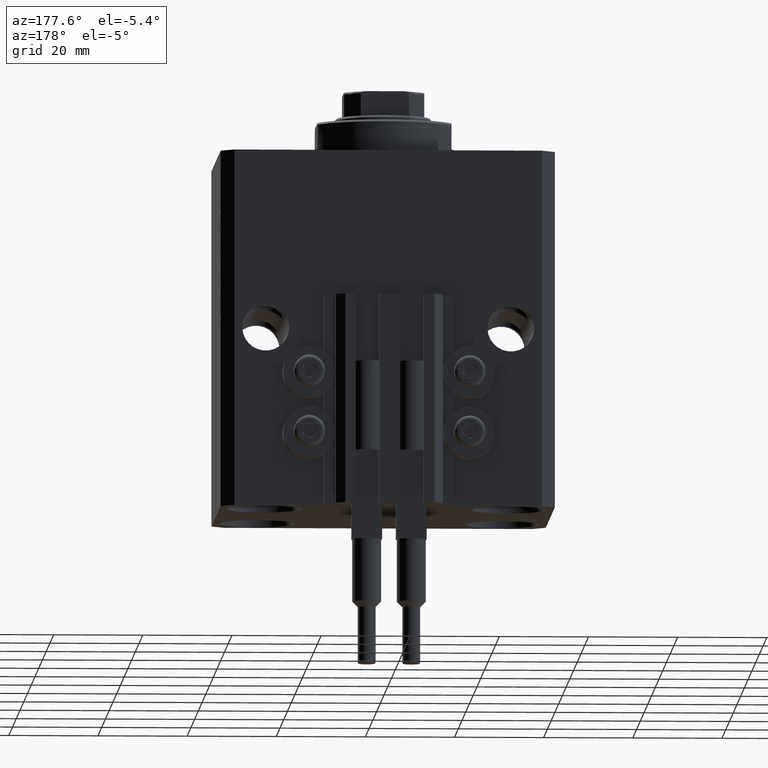
[diagram: clean part render]
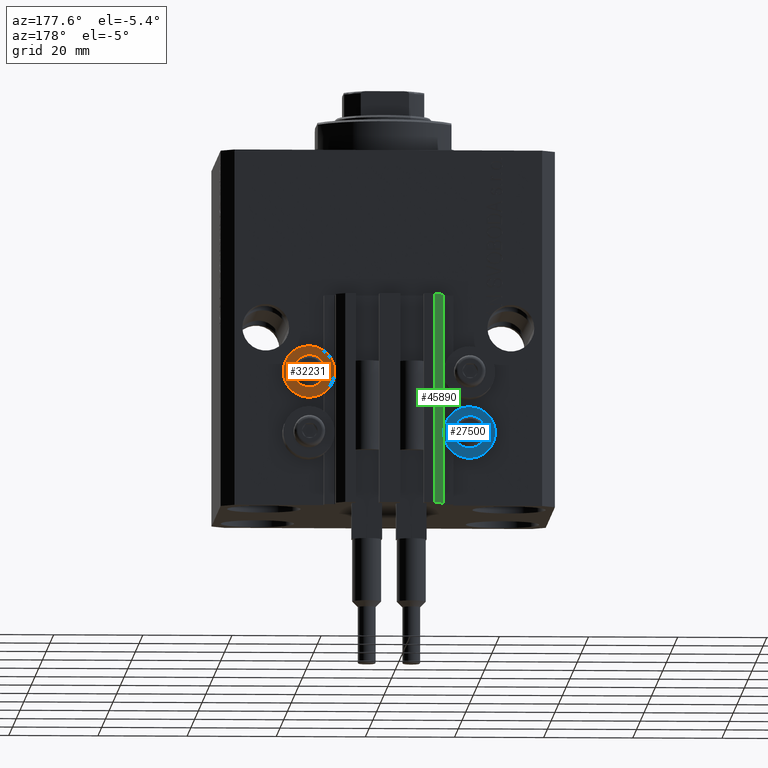
[diagram: same view with three faces highlighted in distinct colors, each labeled with its STEP entity id]
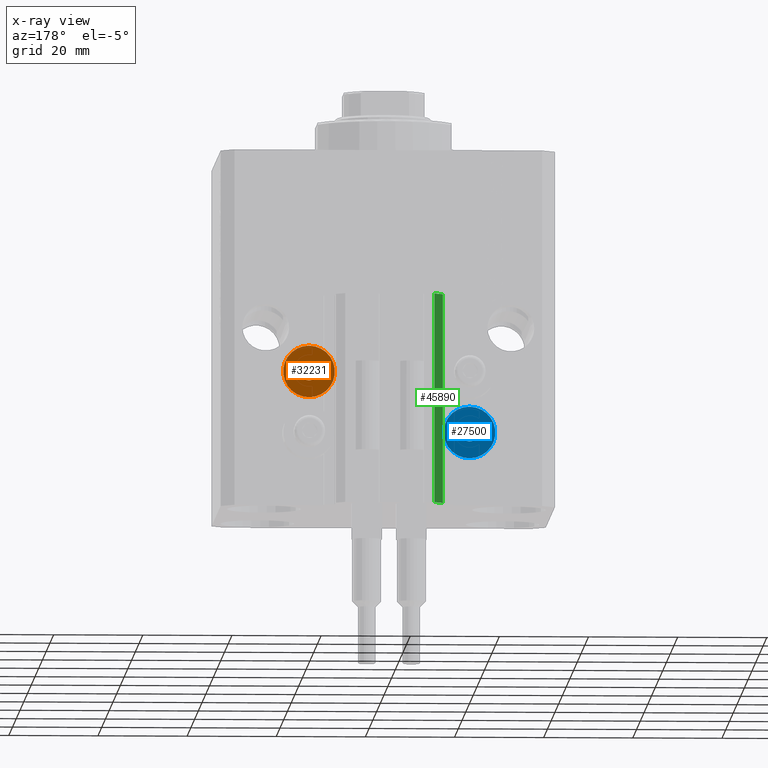
[diagram: x-ray of the same camera — body ghosted, the three highlighted faces saturated]
A machine part, auxiliary view with three faces highlighted in distinct colors.
The next image is the same camera in x-ray (body ghosted, the three faces saturated) — at least one of them is partly hidden behind the body in this view.
Their STEP definitions:

[orange] entity #32231 — the highlighted planar face has unit normal (0, -1, 0).
#305 = CARTESIAN_POINT ( 'NONE',  ( 18.00000000000000355, 32.49999999996100541, -50.39999999999999858 ) ) ;
#3443 = DIRECTION ( 'NONE',  ( 0.000000000000000000, 0.000000000000000000, 1.000000000000000000 ) ) ;
#5960 = ORIENTED_EDGE ( 'NONE', *, *, #25984, .F. ) ;
#6163 = CARTESIAN_POINT ( 'NONE',  ( 18.00000000000000355, 32.49999999996100541, -50.39999999999999858 ) ) ;
#7315 = DIRECTION ( 'NONE',  ( -0.000000000000000000, -1.000000000000000000, -0.000000000000000000 ) ) ;
#7389 = DIRECTION ( 'NONE',  ( -0.000000000000000000, -1.000000000000000000, -0.000000000000000000 ) ) ;
#15101 = AXIS2_PLACEMENT_3D ( 'NONE', #26618, #26383, #22517 ) ;
#15522 = FACE_BOUND ( 'NONE', #30416, .T. ) ;
#17171 = EDGE_CURVE ( 'NONE', #21870, #30648, #29369, .T. ) ;
#17576 = EDGE_CURVE ( 'NONE', #32317, #36187, #40908, .T. ) ;
#19970 = CARTESIAN_POINT ( 'NONE',  ( 18.00000000000000355, 32.49999999996100541, -56.20000000000000284 ) ) ;
#20685 = ORIENTED_EDGE ( 'NONE', *, *, #17576, .F. ) ;
#20740 = EDGE_LOOP ( 'NONE', ( #20685, #5960 ) ) ;
#21870 = VERTEX_POINT ( 'NONE', #34211 ) ;
#21985 = DIRECTION ( 'NONE',  ( 0.000000000000000000, 0.000000000000000000, 1.000000000000000000 ) ) ;
#22517 = DIRECTION ( 'NONE',  ( -0.000000000000000000, 0.000000000000000000, -1.000000000000000000 ) ) ;
#23387 = CARTESIAN_POINT ( 'NONE',  ( 18.00000000000000355, 32.49999999996100541, -48.39999999999999858 ) ) ;
#24573 = AXIS2_PLACEMENT_3D ( 'NONE', #40413, #7389, #43547 ) ;
#25670 = FACE_OUTER_BOUND ( 'NONE', #20740, .T. ) ;
#25984 = EDGE_CURVE ( 'NONE', #36187, #32317, #26438, .T. ) ;
#26383 = DIRECTION ( 'NONE',  ( 0.000000000000000000, -1.000000000000000000, -0.000000000000000000 ) ) ;
#26438 = CIRCLE ( 'NONE', #40315, 5.799999999999999822 ) ;
#26618 = CARTESIAN_POINT ( 'NONE',  ( 12.20000000000000284, 32.49999999996100541, -50.39999999999999858 ) ) ;
#27646 = CIRCLE ( 'NONE', #24573, 2.000000000000001776 ) ;
#28320 = DIRECTION ( 'NONE',  ( 0.000000000000000000, 0.000000000000000000, 1.000000000000000000 ) ) ;
#29369 = CIRCLE ( 'NONE', #47053, 2.000000000000001776 ) ;
#29523 = PLANE ( 'NONE',  #15101 ) ;
#30416 = EDGE_LOOP ( 'NONE', ( #44117, #39829 ) ) ;
#30648 = VERTEX_POINT ( 'NONE', #23387 ) ;
#32231 = ADVANCED_FACE ( 'NONE', ( #15522, #25670 ), #29523, .F. ) ;
#32317 = VERTEX_POINT ( 'NONE', #34317 ) ;
#34211 = CARTESIAN_POINT ( 'NONE',  ( 18.00000000000000355, 32.49999999996100541, -52.40000000000000568 ) ) ;
#34317 = CARTESIAN_POINT ( 'NONE',  ( 18.00000000000000355, 32.49999999996100541, -44.60000000000000142 ) ) ;
#35322 = DIRECTION ( 'NONE',  ( -0.000000000000000000, -1.000000000000000000, -0.000000000000000000 ) ) ;
#36187 = VERTEX_POINT ( 'NONE', #19970 ) ;
#36474 = CARTESIAN_POINT ( 'NONE',  ( 18.00000000000000355, 32.49999999996100541, -50.39999999999999858 ) ) ;
#39829 = ORIENTED_EDGE ( 'NONE', *, *, #17171, .T. ) ;
#40315 = AXIS2_PLACEMENT_3D ( 'NONE', #305, #43681, #3443 ) ;
#40413 = CARTESIAN_POINT ( 'NONE',  ( 18.00000000000000355, 32.49999999996100541, -50.39999999999999858 ) ) ;
#40677 = EDGE_CURVE ( 'NONE', #30648, #21870, #27646, .T. ) ;
#40908 = CIRCLE ( 'NONE', #41693, 5.799999999999999822 ) ;
#41693 = AXIS2_PLACEMENT_3D ( 'NONE', #36474, #7315, #21985 ) ;
#43547 = DIRECTION ( 'NONE',  ( 0.000000000000000000, 0.000000000000000000, 1.000000000000000000 ) ) ;
#43681 = DIRECTION ( 'NONE',  ( -0.000000000000000000, -1.000000000000000000, -0.000000000000000000 ) ) ;
#44117 = ORIENTED_EDGE ( 'NONE', *, *, #40677, .T. ) ;
#47053 = AXIS2_PLACEMENT_3D ( 'NONE', #6163, #35322, #28320 ) ;

[blue] entity #27500 — the highlighted planar face has unit normal (0, -1, 0).
#82 = VERTEX_POINT ( 'NONE', #9788 ) ;
#2329 = ORIENTED_EDGE ( 'NONE', *, *, #13082, .T. ) ;
#3096 = AXIS2_PLACEMENT_3D ( 'NONE', #46041, #38335, #19995 ) ;
#3570 = FACE_BOUND ( 'NONE', #41283, .T. ) ;
#3998 = AXIS2_PLACEMENT_3D ( 'NONE', #45536, #15403, #12503 ) ;
#4196 = CIRCLE ( 'NONE', #43444, 5.799999999999999822 ) ;
#7153 = ORIENTED_EDGE ( 'NONE', *, *, #9148, .F. ) ;
#8448 = AXIS2_PLACEMENT_3D ( 'NONE', #31275, #45986, #35612 ) ;
#8827 = AXIS2_PLACEMENT_3D ( 'NONE', #21363, #43088, #36087 ) ;
#9148 = EDGE_CURVE ( 'NONE', #32005, #46721, #4196, .T. ) ;
#9788 = CARTESIAN_POINT ( 'NONE',  ( -18.00000000000000355, 32.49999999996100541, -62.00000000000000000 ) ) ;
#10751 = CIRCLE ( 'NONE', #8448, 2.000000000000001776 ) ;
#11746 = ORIENTED_EDGE ( 'NONE', *, *, #16683, .T. ) ;
#12503 = DIRECTION ( 'NONE',  ( 0.000000000000000000, 0.000000000000000000, -1.000000000000000000 ) ) ;
#13082 = EDGE_CURVE ( 'NONE', #82, #34350, #10751, .T. ) ;
#14118 = ORIENTED_EDGE ( 'NONE', *, *, #42004, .F. ) ;
#15403 = DIRECTION ( 'NONE',  ( -0.000000000000000000, -1.000000000000000000, -0.000000000000000000 ) ) ;
#16683 = EDGE_CURVE ( 'NONE', #34350, #82, #29333, .T. ) ;
#19659 = CARTESIAN_POINT ( 'NONE',  ( -18.00000000000000355, 32.49999999996100541, -58.20000000000000284 ) ) ;
#19995 = DIRECTION ( 'NONE',  ( 0.000000000000000000, 0.000000000000000000, -1.000000000000000000 ) ) ;
#21363 = CARTESIAN_POINT ( 'NONE',  ( -12.20000000000000284, 32.49999999996100541, -64.00000000000000000 ) ) ;
#21613 = CARTESIAN_POINT ( 'NONE',  ( -18.00000000000000355, 32.49999999996100541, -69.79999999999999716 ) ) ;
#24697 = DIRECTION ( 'NONE',  ( 0.000000000000000000, 0.000000000000000000, -1.000000000000000000 ) ) ;
#27500 = ADVANCED_FACE ( 'NONE', ( #3570, #39711 ), #47183, .F. ) ;
#28554 = CARTESIAN_POINT ( 'NONE',  ( -18.00000000000000355, 32.49999999996100541, -64.00000000000000000 ) ) ;
#29333 = CIRCLE ( 'NONE', #3998, 2.000000000000001776 ) ;
#31275 = CARTESIAN_POINT ( 'NONE',  ( -18.00000000000000355, 32.49999999996100541, -64.00000000000000000 ) ) ;
#32005 = VERTEX_POINT ( 'NONE', #19659 ) ;
#32315 = CIRCLE ( 'NONE', #3096, 5.799999999999999822 ) ;
#34350 = VERTEX_POINT ( 'NONE', #37746 ) ;
#35612 = DIRECTION ( 'NONE',  ( 0.000000000000000000, 0.000000000000000000, -1.000000000000000000 ) ) ;
#36087 = DIRECTION ( 'NONE',  ( 0.000000000000000000, 0.000000000000000000, 1.000000000000000000 ) ) ;
#37746 = CARTESIAN_POINT ( 'NONE',  ( -18.00000000000000355, 32.49999999996100541, -66.00000000000000000 ) ) ;
#38335 = DIRECTION ( 'NONE',  ( -0.000000000000000000, -1.000000000000000000, -0.000000000000000000 ) ) ;
#39711 = FACE_OUTER_BOUND ( 'NONE', #44078, .T. ) ;
#41283 = EDGE_LOOP ( 'NONE', ( #2329, #11746 ) ) ;
#42004 = EDGE_CURVE ( 'NONE', #46721, #32005, #32315, .T. ) ;
#43088 = DIRECTION ( 'NONE',  ( 0.000000000000000000, -1.000000000000000000, 0.000000000000000000 ) ) ;
#43444 = AXIS2_PLACEMENT_3D ( 'NONE', #28554, #47589, #24697 ) ;
#44078 = EDGE_LOOP ( 'NONE', ( #14118, #7153 ) ) ;
#45536 = CARTESIAN_POINT ( 'NONE',  ( -18.00000000000000355, 32.49999999996100541, -64.00000000000000000 ) ) ;
#45986 = DIRECTION ( 'NONE',  ( -0.000000000000000000, -1.000000000000000000, -0.000000000000000000 ) ) ;
#46041 = CARTESIAN_POINT ( 'NONE',  ( -18.00000000000000355, 32.49999999996100541, -64.00000000000000000 ) ) ;
#46721 = VERTEX_POINT ( 'NONE', #21613 ) ;
#47183 = PLANE ( 'NONE',  #8827 ) ;
#47589 = DIRECTION ( 'NONE',  ( -0.000000000000000000, -1.000000000000000000, -0.000000000000000000 ) ) ;

[green] entity #45890 — the highlighted planar face has unit normal (-0.7071, 0.7071, 0).
#3092 = AXIS2_PLACEMENT_3D ( 'NONE', #37051, #11249, #11023 ) ;
#3106 = VERTEX_POINT ( 'NONE', #4379 ) ;
#4379 = CARTESIAN_POINT ( 'NONE',  ( -12.00000000000000000, 33.49999999999998579, -33.00000000000000000 ) ) ;
#9467 = LINE ( 'NONE', #46097, #41074 ) ;
#9976 = DIRECTION ( 'NONE',  ( -0.7071067811865460184, -0.7071067811865490160, 0.000000000000000000 ) ) ;
#10589 = CARTESIAN_POINT ( 'NONE',  ( -12.00000000000000000, 33.49999999999998579, -80.00000000000000000 ) ) ;
#11023 = DIRECTION ( 'NONE',  ( -0.7071067811865460184, -0.7071067811865489050, 0.000000000000000000 ) ) ;
#11249 = DIRECTION ( 'NONE',  ( -0.7071067811865490160, 0.7071067811865461294, 0.000000000000000000 ) ) ;
#11962 = FACE_OUTER_BOUND ( 'NONE', #42673, .T. ) ;
#12035 = ORIENTED_EDGE ( 'NONE', *, *, #34078, .T. ) ;
#13584 = LINE ( 'NONE', #46387, #14705 ) ;
#14705 = VECTOR ( 'NONE', #9976, 1000.000000000000227 ) ;
#16418 = EDGE_CURVE ( 'NONE', #24789, #3106, #13584, .T. ) ;
#16426 = CARTESIAN_POINT ( 'NONE',  ( -10.00000000000000000, 35.50000000000000000, -80.00000000000000000 ) ) ;
#19932 = CARTESIAN_POINT ( 'NONE',  ( -10.00000000000000000, 35.50000000000000000, -80.00000000000000000 ) ) ;
#20635 = VECTOR ( 'NONE', #27043, 1000.000000000000000 ) ;
#24789 = VERTEX_POINT ( 'NONE', #32665 ) ;
#25837 = EDGE_CURVE ( 'NONE', #26365, #3106, #9467, .T. ) ;
#26365 = VERTEX_POINT ( 'NONE', #10589 ) ;
#27043 = DIRECTION ( 'NONE',  ( 0.000000000000000000, 0.000000000000000000, 1.000000000000000000 ) ) ;
#27347 = ORIENTED_EDGE ( 'NONE', *, *, #25837, .T. ) ;
#30711 = VERTEX_POINT ( 'NONE', #39282 ) ;
#31863 = DIRECTION ( 'NONE',  ( 0.000000000000000000, 0.000000000000000000, 1.000000000000000000 ) ) ;
#32383 = ORIENTED_EDGE ( 'NONE', *, *, #38869, .F. ) ;
#32665 = CARTESIAN_POINT ( 'NONE',  ( -10.00000000000000000, 35.50000000000000000, -33.00000000000000000 ) ) ;
#34078 = EDGE_CURVE ( 'NONE', #30711, #26365, #38278, .T. ) ;
#36576 = PLANE ( 'NONE',  #3092 ) ;
#37051 = CARTESIAN_POINT ( 'NONE',  ( -10.00000000000000000, 35.50000000000000000, -80.00000000000000000 ) ) ;
#38278 = LINE ( 'NONE', #19932, #41368 ) ;
#38869 = EDGE_CURVE ( 'NONE', #30711, #24789, #45605, .T. ) ;
#39282 = CARTESIAN_POINT ( 'NONE',  ( -10.00000000000000000, 35.50000000000000000, -80.00000000000000000 ) ) ;
#41074 = VECTOR ( 'NONE', #31863, 1000.000000000000000 ) ;
#41368 = VECTOR ( 'NONE', #41667, 1000.000000000000227 ) ;
#41667 = DIRECTION ( 'NONE',  ( -0.7071067811865460184, -0.7071067811865490160, 0.000000000000000000 ) ) ;
#42673 = EDGE_LOOP ( 'NONE', ( #46608, #32383, #12035, #27347 ) ) ;
#45605 = LINE ( 'NONE', #16426, #20635 ) ;
#45890 = ADVANCED_FACE ( 'NONE', ( #11962 ), #36576, .T. ) ;
#46097 = CARTESIAN_POINT ( 'NONE',  ( -12.00000000000000000, 33.49999999999998579, -80.00000000000000000 ) ) ;
#46387 = CARTESIAN_POINT ( 'NONE',  ( -10.00000000000000000, 35.50000000000000000, -33.00000000000000000 ) ) ;
#46608 = ORIENTED_EDGE ( 'NONE', *, *, #16418, .F. ) ;